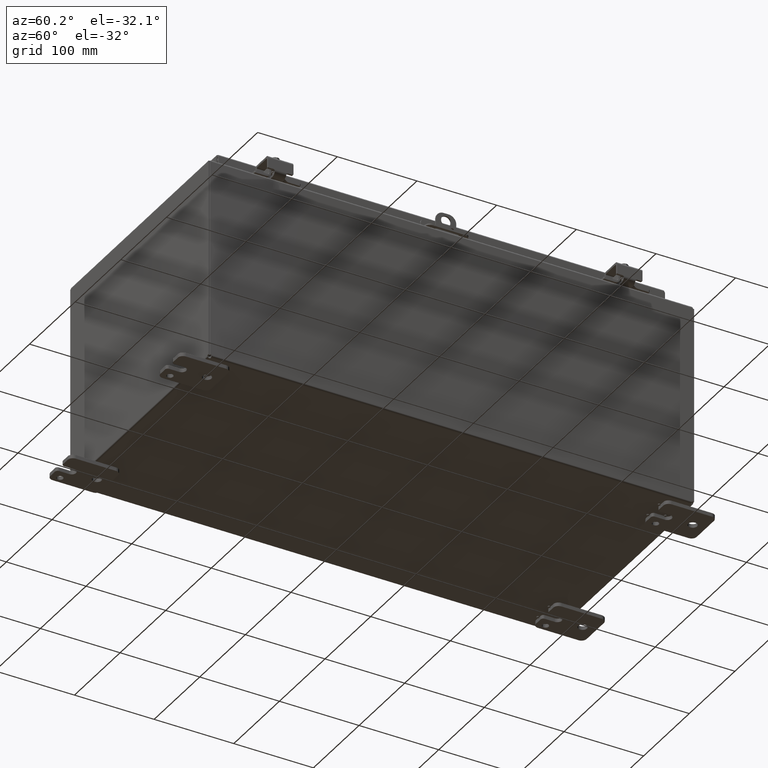
[diagram: clean part render]
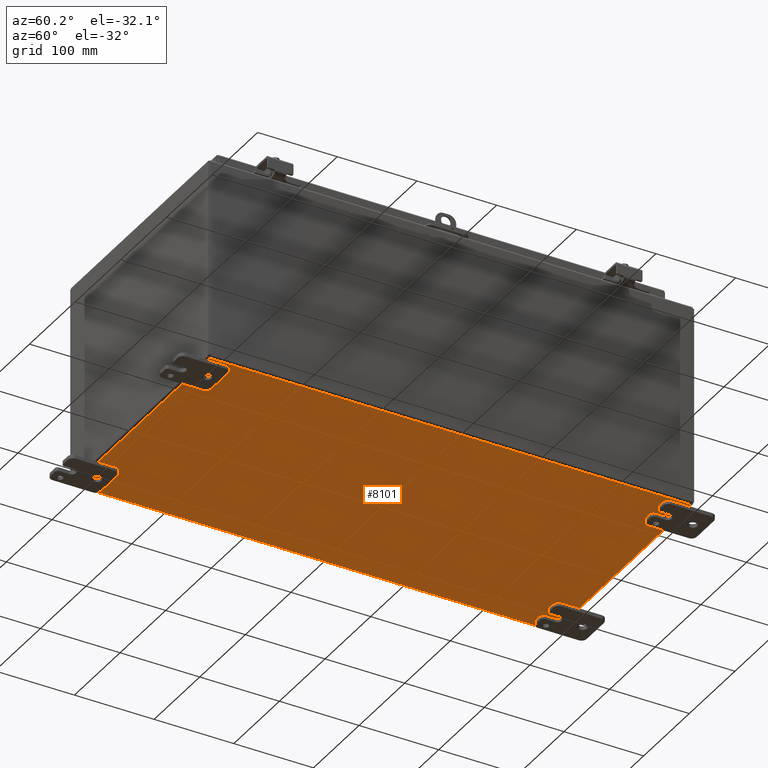
[diagram: same view with one face highlighted and labeled with its STEP entity id]
A machine part, auxiliary view. The second image highlights one B-rep face of the part: STEP entity #8101.
In plain terms, the highlighted planar face has unit normal (0, 0, 1).
Its self-contained STEP definition (entity closure, byte-faithful):
#1663=CARTESIAN_POINT('',(5.174375299999983,-10.689998991866467,0.0));
#1664=VERTEX_POINT('',#1663);
#1665=CARTESIAN_POINT('',(5.234375299999983,-10.689998991866467,0.0));
#1666=DIRECTION('',(0.0,0.0,1.0));
#1667=DIRECTION('',(1.0,0.0,0.0));
#1668=AXIS2_PLACEMENT_3D('',#1665,#1666,#1667);
#1669=CIRCLE('',#1668,0.06);
#1670=EDGE_CURVE('',#1664,#1664,#1669,.T.);
#1737=CARTESIAN_POINT('',(4.205625299999985,-10.689998991866467,0.0));
#1738=VERTEX_POINT('',#1737);
#1739=CARTESIAN_POINT('',(4.265625299999986,-10.689998991866467,0.0));
#1740=DIRECTION('',(0.0,0.0,1.0));
#1741=DIRECTION('',(1.0,0.0,0.0));
#1742=AXIS2_PLACEMENT_3D('',#1739,#1740,#1741);
#1743=CIRCLE('',#1742,0.06);
#1744=EDGE_CURVE('',#1738,#1738,#1743,.T.);
#1811=CARTESIAN_POINT('',(4.531250299997257,-11.375498991872275,0.0));
#1812=VERTEX_POINT('',#1811);
#1813=CARTESIAN_POINT('',(4.591250299997257,-11.375498991872275,0.0));
#1814=DIRECTION('',(0.0,0.0,1.0));
#1815=DIRECTION('',(1.0,0.0,0.0));
#1816=AXIS2_PLACEMENT_3D('',#1813,#1814,#1815);
#1817=CIRCLE('',#1816,0.06);
#1818=EDGE_CURVE('',#1812,#1812,#1817,.T.);
#1885=CARTESIAN_POINT('',(-4.325625299999989,-10.689998991866464,0.0));
#1886=VERTEX_POINT('',#1885);
#1887=CARTESIAN_POINT('',(-4.265625299999988,-10.689998991866464,0.0));
#1888=DIRECTION('',(0.0,0.0,1.0));
#1889=DIRECTION('',(1.0,0.0,0.0));
#1890=AXIS2_PLACEMENT_3D('',#1887,#1888,#1889);
#1891=CIRCLE('',#1890,0.06);
#1892=EDGE_CURVE('',#1886,#1886,#1891,.T.);
#1959=CARTESIAN_POINT('',(-4.65125029999726,-11.375498991872274,0.0));
#1960=VERTEX_POINT('',#1959);
#1961=CARTESIAN_POINT('',(-4.59125029999726,-11.375498991872274,0.0));
#1962=DIRECTION('',(0.0,0.0,1.0));
#1963=DIRECTION('',(1.0,0.0,0.0));
#1964=AXIS2_PLACEMENT_3D('',#1961,#1962,#1963);
#1965=CIRCLE('',#1964,0.06);
#1966=EDGE_CURVE('',#1960,#1960,#1965,.T.);
#2033=CARTESIAN_POINT('',(-5.294375299999986,-10.689998991866464,0.0));
#2034=VERTEX_POINT('',#2033);
#2035=CARTESIAN_POINT('',(-5.234375299999986,-10.689998991866464,0.0));
#2036=DIRECTION('',(0.0,0.0,1.0));
#2037=DIRECTION('',(1.0,0.0,0.0));
#2038=AXIS2_PLACEMENT_3D('',#2035,#2036,#2037);
#2039=CIRCLE('',#2038,0.06);
#2040=EDGE_CURVE('',#2034,#2034,#2039,.T.);
#2107=CARTESIAN_POINT('',(-4.651250299997262,11.375498991872274,0.0));
#2108=VERTEX_POINT('',#2107);
#2109=CARTESIAN_POINT('',(-4.591250299997261,11.375498991872274,0.0));
#2110=DIRECTION('',(0.0,0.0,1.0));
#2111=DIRECTION('',(1.0,0.0,0.0));
#2112=AXIS2_PLACEMENT_3D('',#2109,#2110,#2111);
#2113=CIRCLE('',#2112,0.06);
#2114=EDGE_CURVE('',#2108,#2108,#2113,.T.);
#2181=CARTESIAN_POINT('',(-5.294375299999987,10.689998991866464,0.0));
#2182=VERTEX_POINT('',#2181);
#2183=CARTESIAN_POINT('',(-5.234375299999988,10.689998991866464,0.0));
#2184=DIRECTION('',(0.0,0.0,1.0));
#2185=DIRECTION('',(1.0,0.0,0.0));
#2186=AXIS2_PLACEMENT_3D('',#2183,#2184,#2185);
#2187=CIRCLE('',#2186,0.06);
#2188=EDGE_CURVE('',#2182,#2182,#2187,.T.);
#2255=CARTESIAN_POINT('',(-4.32562529999999,10.689998991866464,0.0));
#2256=VERTEX_POINT('',#2255);
#2257=CARTESIAN_POINT('',(-4.26562529999999,10.689998991866464,0.0));
#2258=DIRECTION('',(0.0,0.0,1.0));
#2259=DIRECTION('',(1.0,0.0,0.0));
#2260=AXIS2_PLACEMENT_3D('',#2257,#2258,#2259);
#2261=CIRCLE('',#2260,0.06);
#2262=EDGE_CURVE('',#2256,#2256,#2261,.T.);
#2329=CARTESIAN_POINT('',(4.205625299999995,10.68999899186646,0.0));
#2330=VERTEX_POINT('',#2329);
#2331=CARTESIAN_POINT('',(4.265625299999996,10.68999899186646,0.0));
#2332=DIRECTION('',(0.0,0.0,1.0));
#2333=DIRECTION('',(1.0,0.0,0.0));
#2334=AXIS2_PLACEMENT_3D('',#2331,#2332,#2333);
#2335=CIRCLE('',#2334,0.06);
#2336=EDGE_CURVE('',#2330,#2330,#2335,.T.);
#2403=CARTESIAN_POINT('',(4.531250299997267,11.37549899187227,0.0));
#2404=VERTEX_POINT('',#2403);
#2405=CARTESIAN_POINT('',(4.591250299997267,11.37549899187227,0.0));
#2406=DIRECTION('',(0.0,0.0,1.0));
#2407=DIRECTION('',(1.0,0.0,0.0));
#2408=AXIS2_PLACEMENT_3D('',#2405,#2406,#2407);
#2409=CIRCLE('',#2408,0.06);
#2410=EDGE_CURVE('',#2404,#2404,#2409,.T.);
#2477=CARTESIAN_POINT('',(5.174375299999992,10.68999899186646,0.0));
#2478=VERTEX_POINT('',#2477);
#2479=CARTESIAN_POINT('',(5.234375299999993,10.68999899186646,0.0));
#2480=DIRECTION('',(0.0,0.0,1.0));
#2481=DIRECTION('',(1.0,0.0,0.0));
#2482=AXIS2_PLACEMENT_3D('',#2479,#2480,#2481);
#2483=CIRCLE('',#2482,0.06);
#2484=EDGE_CURVE('',#2478,#2478,#2483,.T.);
#6847=CARTESIAN_POINT('',(5.894749999999999,11.882766839324361,-6.993531E-016));
#6848=VERTEX_POINT('',#6847);
#6961=CARTESIAN_POINT('',(5.894749999999999,-11.88276683932436,0.0));
#6962=VERTEX_POINT('',#6961);
#7005=CARTESIAN_POINT('',(5.894749999999999,11.882766839324361,0.0));
#7006=DIRECTION('',(0.0,-1.0,0.0));
#7007=VECTOR('',#7006,23.765533678648723);
#7008=LINE('',#7005,#7007);
#7009=EDGE_CURVE('',#6848,#6962,#7008,.T.);
#7176=CARTESIAN_POINT('',(-5.894749999999998,-11.882766839324363,-6.993531E-016));
#7177=VERTEX_POINT('',#7176);
#7290=CARTESIAN_POINT('',(-5.894750000000002,11.882766839324367,0.0));
#7291=VERTEX_POINT('',#7290);
#7334=CARTESIAN_POINT('',(-5.894749999999998,-11.882766839324363,0.0));
#7335=DIRECTION('',(0.0,1.0,0.0));
#7336=VECTOR('',#7335,23.76553367864873);
#7337=LINE('',#7334,#7336);
#7338=EDGE_CURVE('',#7177,#7291,#7337,.T.);
#7505=CARTESIAN_POINT('',(5.882766839324359,-11.894750000000002,0.0));
#7506=VERTEX_POINT('',#7505);
#7569=CARTESIAN_POINT('',(-5.88276683932436,-11.894750000000002,0.0));
#7570=VERTEX_POINT('',#7569);
#7584=CARTESIAN_POINT('',(5.882766839324358,-11.894750000000002,0.0));
#7585=DIRECTION('',(-1.0,0.0,0.0));
#7586=VECTOR('',#7585,11.765533678648715);
#7587=LINE('',#7584,#7586);
#7588=EDGE_CURVE('',#7506,#7570,#7587,.T.);
#7838=CARTESIAN_POINT('',(-5.88276683932437,11.894749999999998,0.0));
#7839=VERTEX_POINT('',#7838);
#7952=CARTESIAN_POINT('',(5.882766839324362,11.894749999999998,0.0));
#7953=VERTEX_POINT('',#7952);
#7996=CARTESIAN_POINT('',(-5.88276683932437,11.894749999999998,0.0));
#7997=DIRECTION('',(1.0,0.0,0.0));
#7998=VECTOR('',#7997,11.765533678648733);
#7999=LINE('',#7996,#7998);
#8000=EDGE_CURVE('',#7839,#7953,#7999,.T.);
#8013=CARTESIAN_POINT('',(-5.937891921115424,11.937891921115424,0.0));
#8014=DIRECTION('',(0.0,0.0,1.0));
#8015=DIRECTION('',(1.0,0.0,0.0));
#8016=AXIS2_PLACEMENT_3D('',#8013,#8014,#8015);
#8017=CIRCLE('',#8016,0.07);
#8018=EDGE_CURVE('',#7291,#7839,#8017,.T.);
#8032=CARTESIAN_POINT('',(-6.993531E-016,6.993531E-016,0.0));
#8033=DIRECTION('',(0.0,0.0,1.0));
#8034=DIRECTION('',(1.0,0.0,0.0));
#8035=AXIS2_PLACEMENT_3D('',#8032,#8033,#8034);
#8036=PLANE('',#8035);
#8037=ORIENTED_EDGE('',*,*,#8000,.T.);
#8038=CARTESIAN_POINT('',(5.937891921115418,11.937891921115421,0.0));
#8039=DIRECTION('',(0.0,0.0,1.0));
#8040=DIRECTION('',(1.0,0.0,0.0));
#8041=AXIS2_PLACEMENT_3D('',#8038,#8039,#8040);
#8042=CIRCLE('',#8041,0.07);
#8043=EDGE_CURVE('',#7953,#6848,#8042,.T.);
#8044=ORIENTED_EDGE('',*,*,#8043,.T.);
#8045=ORIENTED_EDGE('',*,*,#7009,.T.);
#8046=CARTESIAN_POINT('',(5.937891921115418,-11.937891921115419,0.0));
#8047=DIRECTION('',(0.0,0.0,1.0));
#8048=DIRECTION('',(1.0,0.0,0.0));
#8049=AXIS2_PLACEMENT_3D('',#8046,#8047,#8048);
#8050=CIRCLE('',#8049,0.07);
#8051=EDGE_CURVE('',#6962,#7506,#8050,.T.);
#8052=ORIENTED_EDGE('',*,*,#8051,.T.);
#8053=ORIENTED_EDGE('',*,*,#7588,.T.);
#8054=CARTESIAN_POINT('',(-5.937891921115416,-11.937891921115423,0.0));
#8055=DIRECTION('',(0.0,0.0,1.0));
#8056=DIRECTION('',(1.0,0.0,0.0));
#8057=AXIS2_PLACEMENT_3D('',#8054,#8055,#8056);
#8058=CIRCLE('',#8057,0.07);
#8059=EDGE_CURVE('',#7570,#7177,#8058,.T.);
#8060=ORIENTED_EDGE('',*,*,#8059,.T.);
#8061=ORIENTED_EDGE('',*,*,#7338,.T.);
#8062=ORIENTED_EDGE('',*,*,#8018,.T.);
#8063=EDGE_LOOP('',(#8037,#8044,#8045,#8052,#8053,#8060,#8061,#8062));
#8064=FACE_OUTER_BOUND('',#8063,.T.);
#8065=ORIENTED_EDGE('',*,*,#1670,.T.);
#8066=EDGE_LOOP('',(#8065));
#8067=FACE_BOUND('',#8066,.T.);
#8068=ORIENTED_EDGE('',*,*,#1744,.T.);
#8069=EDGE_LOOP('',(#8068));
#8070=FACE_BOUND('',#8069,.T.);
#8071=ORIENTED_EDGE('',*,*,#1818,.T.);
#8072=EDGE_LOOP('',(#8071));
#8073=FACE_BOUND('',#8072,.T.);
#8074=ORIENTED_EDGE('',*,*,#1892,.T.);
#8075=EDGE_LOOP('',(#8074));
#8076=FACE_BOUND('',#8075,.T.);
#8077=ORIENTED_EDGE('',*,*,#1966,.T.);
#8078=EDGE_LOOP('',(#8077));
#8079=FACE_BOUND('',#8078,.T.);
#8080=ORIENTED_EDGE('',*,*,#2040,.T.);
#8081=EDGE_LOOP('',(#8080));
#8082=FACE_BOUND('',#8081,.T.);
#8083=ORIENTED_EDGE('',*,*,#2114,.T.);
#8084=EDGE_LOOP('',(#8083));
#8085=FACE_BOUND('',#8084,.T.);
#8086=ORIENTED_EDGE('',*,*,#2188,.T.);
#8087=EDGE_LOOP('',(#8086));
#8088=FACE_BOUND('',#8087,.T.);
#8089=ORIENTED_EDGE('',*,*,#2262,.T.);
#8090=EDGE_LOOP('',(#8089));
#8091=FACE_BOUND('',#8090,.T.);
#8092=ORIENTED_EDGE('',*,*,#2336,.T.);
#8093=EDGE_LOOP('',(#8092));
#8094=FACE_BOUND('',#8093,.T.);
#8095=ORIENTED_EDGE('',*,*,#2410,.T.);
#8096=EDGE_LOOP('',(#8095));
#8097=FACE_BOUND('',#8096,.T.);
#8098=ORIENTED_EDGE('',*,*,#2484,.T.);
#8099=EDGE_LOOP('',(#8098));
#8100=FACE_BOUND('',#8099,.T.);
#8101=ADVANCED_FACE('',(#8064,#8067,#8070,#8073,#8076,#8079,#8082,#8085,#8088,#8091,#8094,#8097,#8100),#8036,.F.);